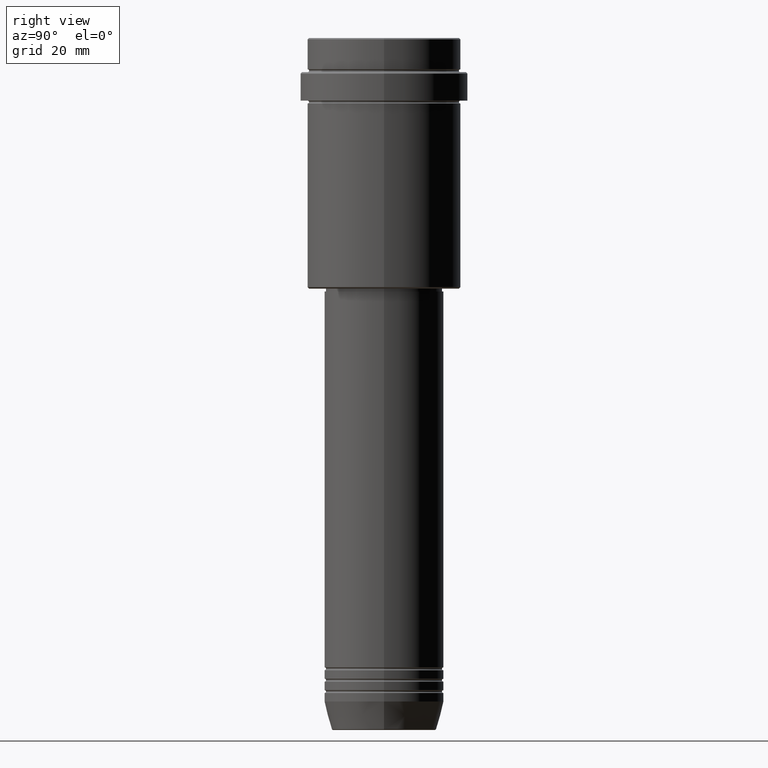
[diagram: clean part render]
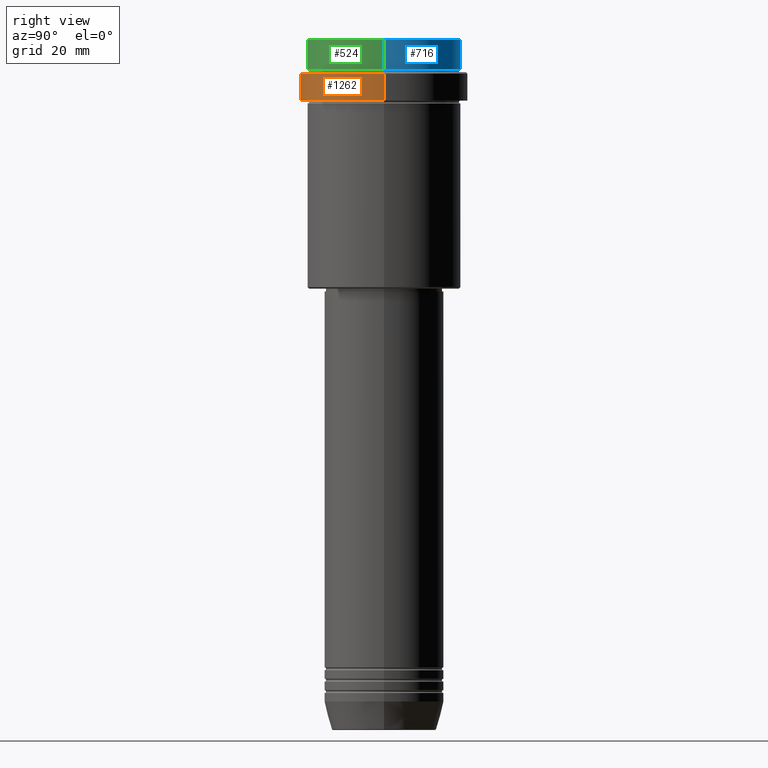
[diagram: same view with three faces highlighted in distinct colors, each labeled with its STEP entity id]
A machine part, right view with three faces highlighted in distinct colors.
Their STEP definitions:

[orange] entity #1262 — the highlighted cylindrical surface (partial cylindrical patch) has radius 29.5 mm, axis along (-0, -0, 1).
#13 = CIRCLE ( 'NONE', #1070, 29.49999999999999645 ) ;
#19 = ORIENTED_EDGE ( 'NONE', *, *, #399, .F. ) ;
#30 = VERTEX_POINT ( 'NONE', #1110 ) ;
#47 = FACE_OUTER_BOUND ( 'NONE', #357, .T. ) ;
#62 = EDGE_CURVE ( 'NONE', #30, #1084, #1273, .T. ) ;
#170 = AXIS2_PLACEMENT_3D ( 'NONE', #1241, #904, #994 ) ;
#258 = EDGE_CURVE ( 'NONE', #619, #30, #13, .T. ) ;
#312 = AXIS2_PLACEMENT_3D ( 'NONE', #526, #1416, #622 ) ;
#340 = CARTESIAN_POINT ( 'NONE',  ( -29.50000000000000000, 3.612708057484691604E-15, 0.000000000000000000 ) ) ;
#357 = EDGE_LOOP ( 'NONE', ( #19, #1299, #1082, #1328 ) ) ;
#399 = EDGE_CURVE ( 'NONE', #619, #1364, #1254, .T. ) ;
#447 = DIRECTION ( 'NONE',  ( -0.000000000000000000, -0.000000000000000000, 1.000000000000000000 ) ) ;
#465 = CYLINDRICAL_SURFACE ( 'NONE', #170, 29.50000000000000000 ) ;
#483 = CARTESIAN_POINT ( 'NONE',  ( 29.50000000000000000, 0.000000000000000000, -12.49999999999994849 ) ) ;
#526 = CARTESIAN_POINT ( 'NONE',  ( 0.000000000000000000, 0.000000000000000000, -12.49999999999994849 ) ) ;
#619 = VERTEX_POINT ( 'NONE', #1280 ) ;
#622 = DIRECTION ( 'NONE',  ( 1.000000000000000000, 0.000000000000000000, 0.000000000000000000 ) ) ;
#629 = VECTOR ( 'NONE', #1373, 1000.000000000000000 ) ;
#658 = CARTESIAN_POINT ( 'NONE',  ( 0.000000000000000000, 0.000000000000000000, -22.00000000000000711 ) ) ;
#770 = CARTESIAN_POINT ( 'NONE',  ( -29.50000000000000000, 3.612708057484691604E-15, -12.49999999999994849 ) ) ;
#904 = DIRECTION ( 'NONE',  ( -0.000000000000000000, -0.000000000000000000, 1.000000000000000000 ) ) ;
#994 = DIRECTION ( 'NONE',  ( 1.000000000000000000, 0.000000000000000000, 0.000000000000000000 ) ) ;
#1020 = CIRCLE ( 'NONE', #312, 29.50000000000000000 ) ;
#1070 = AXIS2_PLACEMENT_3D ( 'NONE', #658, #1193, #1415 ) ;
#1082 = ORIENTED_EDGE ( 'NONE', *, *, #62, .T. ) ;
#1084 = VERTEX_POINT ( 'NONE', #483 ) ;
#1110 = CARTESIAN_POINT ( 'NONE',  ( 29.49999999999999645, 0.000000000000000000, -22.00000000000000711 ) ) ;
#1140 = CARTESIAN_POINT ( 'NONE',  ( 29.50000000000000000, 0.000000000000000000, 0.000000000000000000 ) ) ;
#1193 = DIRECTION ( 'NONE',  ( -0.000000000000000000, -0.000000000000000000, 1.000000000000000000 ) ) ;
#1208 = EDGE_CURVE ( 'NONE', #1084, #1364, #1020, .T. ) ;
#1241 = CARTESIAN_POINT ( 'NONE',  ( 0.000000000000000000, 0.000000000000000000, 0.000000000000000000 ) ) ;
#1254 = LINE ( 'NONE', #340, #1271 ) ;
#1262 = ADVANCED_FACE ( 'NONE', ( #47 ), #465, .T. ) ;
#1271 = VECTOR ( 'NONE', #447, 1000.000000000000000 ) ;
#1273 = LINE ( 'NONE', #1140, #629 ) ;
#1280 = CARTESIAN_POINT ( 'NONE',  ( -29.49999999999999645, 3.612708057484690815E-15, -22.00000000000000711 ) ) ;
#1299 = ORIENTED_EDGE ( 'NONE', *, *, #258, .T. ) ;
#1328 = ORIENTED_EDGE ( 'NONE', *, *, #1208, .T. ) ;
#1364 = VERTEX_POINT ( 'NONE', #770 ) ;
#1373 = DIRECTION ( 'NONE',  ( -0.000000000000000000, -0.000000000000000000, 1.000000000000000000 ) ) ;
#1415 = DIRECTION ( 'NONE',  ( 1.000000000000000000, 0.000000000000000000, 0.000000000000000000 ) ) ;
#1416 = DIRECTION ( 'NONE',  ( 0.000000000000000000, 0.000000000000000000, -1.000000000000000000 ) ) ;

[blue] entity #716 — the highlighted cylindrical surface (partial cylindrical patch) has radius 27 mm, axis along (-0, -0, 1).
#119 = DIRECTION ( 'NONE',  ( -0.000000000000000000, -0.000000000000000000, 1.000000000000000000 ) ) ;
#137 = CARTESIAN_POINT ( 'NONE',  ( 0.000000000000000000, 0.000000000000000000, -0.4999999999999518718 ) ) ;
#163 = EDGE_CURVE ( 'NONE', #944, #1397, #764, .T. ) ;
#196 = VERTEX_POINT ( 'NONE', #965 ) ;
#234 = AXIS2_PLACEMENT_3D ( 'NONE', #1155, #377, #1147 ) ;
#247 = DIRECTION ( 'NONE',  ( 0.000000000000000000, 0.000000000000000000, -1.000000000000000000 ) ) ;
#324 = CARTESIAN_POINT ( 'NONE',  ( 0.000000000000000000, 0.000000000000000000, 0.000000000000000000 ) ) ;
#377 = DIRECTION ( 'NONE',  ( -0.000000000000000000, -0.000000000000000000, 1.000000000000000000 ) ) ;
#475 = CIRCLE ( 'NONE', #234, 27.00000000000000355 ) ;
#478 = CIRCLE ( 'NONE', #867, 27.00000000000000355 ) ;
#504 = EDGE_LOOP ( 'NONE', ( #706, #1414, #938, #1136 ) ) ;
#505 = EDGE_CURVE ( 'NONE', #731, #1397, #478, .T. ) ;
#567 = AXIS2_PLACEMENT_3D ( 'NONE', #324, #1091, #635 ) ;
#573 = DIRECTION ( 'NONE',  ( 1.000000000000000000, 0.000000000000000000, 0.000000000000000000 ) ) ;
#586 = VECTOR ( 'NONE', #119, 1000.000000000000000 ) ;
#635 = DIRECTION ( 'NONE',  ( 1.000000000000000000, 0.000000000000000000, 0.000000000000000000 ) ) ;
#657 = CARTESIAN_POINT ( 'NONE',  ( -27.00000000000000355, 3.306546357697854128E-15, 0.000000000000000000 ) ) ;
#706 = ORIENTED_EDGE ( 'NONE', *, *, #990, .T. ) ;
#716 = ADVANCED_FACE ( 'NONE', ( #1300 ), #1326, .T. ) ;
#731 = VERTEX_POINT ( 'NONE', #862 ) ;
#764 = LINE ( 'NONE', #1200, #586 ) ;
#858 = EDGE_CURVE ( 'NONE', #196, #731, #1358, .T. ) ;
#862 = CARTESIAN_POINT ( 'NONE',  ( -27.00000000000000355, 3.306546357697854128E-15, -0.4999999999999518718 ) ) ;
#867 = AXIS2_PLACEMENT_3D ( 'NONE', #137, #247, #573 ) ;
#938 = ORIENTED_EDGE ( 'NONE', *, *, #505, .T. ) ;
#944 = VERTEX_POINT ( 'NONE', #1272 ) ;
#965 = CARTESIAN_POINT ( 'NONE',  ( -27.00000000000000355, 3.306546357697854128E-15, -11.00000000000000178 ) ) ;
#990 = EDGE_CURVE ( 'NONE', #944, #196, #475, .T. ) ;
#1001 = CARTESIAN_POINT ( 'NONE',  ( 27.00000000000000355, 0.000000000000000000, -0.4999999999999518718 ) ) ;
#1024 = VECTOR ( 'NONE', #1230, 1000.000000000000000 ) ;
#1091 = DIRECTION ( 'NONE',  ( -0.000000000000000000, -0.000000000000000000, 1.000000000000000000 ) ) ;
#1136 = ORIENTED_EDGE ( 'NONE', *, *, #163, .F. ) ;
#1147 = DIRECTION ( 'NONE',  ( 1.000000000000000000, 0.000000000000000000, 0.000000000000000000 ) ) ;
#1155 = CARTESIAN_POINT ( 'NONE',  ( 0.000000000000000000, 0.000000000000000000, -11.00000000000000178 ) ) ;
#1200 = CARTESIAN_POINT ( 'NONE',  ( 27.00000000000000355, 0.000000000000000000, 0.000000000000000000 ) ) ;
#1230 = DIRECTION ( 'NONE',  ( -0.000000000000000000, -0.000000000000000000, 1.000000000000000000 ) ) ;
#1272 = CARTESIAN_POINT ( 'NONE',  ( 27.00000000000000355, 0.000000000000000000, -11.00000000000000178 ) ) ;
#1300 = FACE_OUTER_BOUND ( 'NONE', #504, .T. ) ;
#1326 = CYLINDRICAL_SURFACE ( 'NONE', #567, 27.00000000000000355 ) ;
#1358 = LINE ( 'NONE', #657, #1024 ) ;
#1397 = VERTEX_POINT ( 'NONE', #1001 ) ;
#1414 = ORIENTED_EDGE ( 'NONE', *, *, #858, .T. ) ;

[green] entity #524 — the highlighted cylindrical surface (partial cylindrical patch) has radius 27 mm, axis along (-0, -0, 1).
#37 = FACE_OUTER_BOUND ( 'NONE', #200, .T. ) ;
#93 = ORIENTED_EDGE ( 'NONE', *, *, #163, .T. ) ;
#110 = ORIENTED_EDGE ( 'NONE', *, *, #858, .F. ) ;
#119 = DIRECTION ( 'NONE',  ( -0.000000000000000000, -0.000000000000000000, 1.000000000000000000 ) ) ;
#160 = ORIENTED_EDGE ( 'NONE', *, *, #1406, .T. ) ;
#163 = EDGE_CURVE ( 'NONE', #944, #1397, #764, .T. ) ;
#196 = VERTEX_POINT ( 'NONE', #965 ) ;
#200 = EDGE_LOOP ( 'NONE', ( #110, #1269, #93, #160 ) ) ;
#233 = AXIS2_PLACEMENT_3D ( 'NONE', #543, #295, #733 ) ;
#280 = DIRECTION ( 'NONE',  ( -0.000000000000000000, -0.000000000000000000, 1.000000000000000000 ) ) ;
#289 = AXIS2_PLACEMENT_3D ( 'NONE', #937, #366, #1160 ) ;
#295 = DIRECTION ( 'NONE',  ( -0.000000000000000000, -0.000000000000000000, 1.000000000000000000 ) ) ;
#339 = AXIS2_PLACEMENT_3D ( 'NONE', #670, #280, #375 ) ;
#348 = CYLINDRICAL_SURFACE ( 'NONE', #339, 27.00000000000000355 ) ;
#366 = DIRECTION ( 'NONE',  ( 0.000000000000000000, 0.000000000000000000, -1.000000000000000000 ) ) ;
#375 = DIRECTION ( 'NONE',  ( 1.000000000000000000, 0.000000000000000000, 0.000000000000000000 ) ) ;
#524 = ADVANCED_FACE ( 'NONE', ( #37 ), #348, .T. ) ;
#543 = CARTESIAN_POINT ( 'NONE',  ( 0.000000000000000000, 0.000000000000000000, -11.00000000000000178 ) ) ;
#586 = VECTOR ( 'NONE', #119, 1000.000000000000000 ) ;
#657 = CARTESIAN_POINT ( 'NONE',  ( -27.00000000000000355, 3.306546357697854128E-15, 0.000000000000000000 ) ) ;
#670 = CARTESIAN_POINT ( 'NONE',  ( 0.000000000000000000, 0.000000000000000000, 0.000000000000000000 ) ) ;
#731 = VERTEX_POINT ( 'NONE', #862 ) ;
#733 = DIRECTION ( 'NONE',  ( 1.000000000000000000, 0.000000000000000000, 0.000000000000000000 ) ) ;
#764 = LINE ( 'NONE', #1200, #586 ) ;
#769 = EDGE_CURVE ( 'NONE', #196, #944, #783, .T. ) ;
#783 = CIRCLE ( 'NONE', #233, 27.00000000000000355 ) ;
#801 = CIRCLE ( 'NONE', #289, 27.00000000000000355 ) ;
#858 = EDGE_CURVE ( 'NONE', #196, #731, #1358, .T. ) ;
#862 = CARTESIAN_POINT ( 'NONE',  ( -27.00000000000000355, 3.306546357697854128E-15, -0.4999999999999518718 ) ) ;
#937 = CARTESIAN_POINT ( 'NONE',  ( 0.000000000000000000, 0.000000000000000000, -0.4999999999999518718 ) ) ;
#944 = VERTEX_POINT ( 'NONE', #1272 ) ;
#965 = CARTESIAN_POINT ( 'NONE',  ( -27.00000000000000355, 3.306546357697854128E-15, -11.00000000000000178 ) ) ;
#1001 = CARTESIAN_POINT ( 'NONE',  ( 27.00000000000000355, 0.000000000000000000, -0.4999999999999518718 ) ) ;
#1024 = VECTOR ( 'NONE', #1230, 1000.000000000000000 ) ;
#1160 = DIRECTION ( 'NONE',  ( 1.000000000000000000, 0.000000000000000000, 0.000000000000000000 ) ) ;
#1200 = CARTESIAN_POINT ( 'NONE',  ( 27.00000000000000355, 0.000000000000000000, 0.000000000000000000 ) ) ;
#1230 = DIRECTION ( 'NONE',  ( -0.000000000000000000, -0.000000000000000000, 1.000000000000000000 ) ) ;
#1269 = ORIENTED_EDGE ( 'NONE', *, *, #769, .T. ) ;
#1272 = CARTESIAN_POINT ( 'NONE',  ( 27.00000000000000355, 0.000000000000000000, -11.00000000000000178 ) ) ;
#1358 = LINE ( 'NONE', #657, #1024 ) ;
#1397 = VERTEX_POINT ( 'NONE', #1001 ) ;
#1406 = EDGE_CURVE ( 'NONE', #1397, #731, #801, .T. ) ;